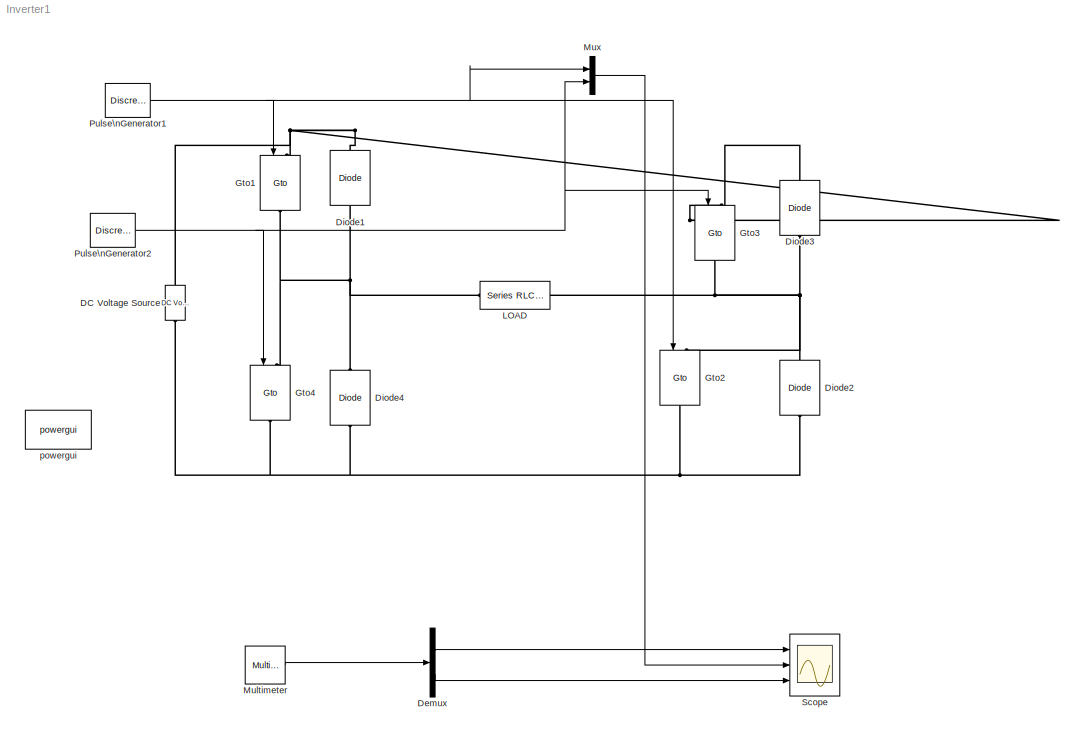
MODEL Inverter1
KIND model
BLOCK [Reference] DC Voltage Source  REF=powerlib/Electrical\nSources/DC Voltage Source
  Amplitude = 5
  FunctionWithSeparateData = off
  GeneratePreprocessorConditionals = off
  Measurements = Voltage
  Ports = [0, 0, 0, 0, 0, 1, 1]
  RTWMemSecDataConstants = Inherit from model
  RTWMemSecDataInternal = Inherit from model
  RTWMemSecDataParameters = Inherit from model
  RTWMemSecFuncExecute = Inherit from model
  RTWMemSecFuncInitTerm = Inherit from model
  SID = 1
  ShowPortLabels = FromPortIcon
  SourceBlock = powerlib/Electrical\nSources/DC Voltage Source
  SourceProductBaseCode = PS
  SourceProductName = Simscape Electrical
  SourceType = DC Voltage Source
  SystemSampleTime = -1
BLOCK [Demux] Demux
  DisplayOption = bar
  Outputs = 2
  Ports = [1, 2]
  SID = 2
BLOCK [Reference] Diode1  REF=powerlib/Power\nElectronics/Diode
  Cs = 250e-9
  FunctionWithSeparateData = off
  GeneratePreprocessorConditionals = off
  IC = 0
  Lon = 0
  Measurements = off
  Ports = [0, 0, 0, 0, 0, 1, 1]
  RTWMemSecDataConstants = Inherit from model
  RTWMemSecDataInternal = Inherit from model
  RTWMemSecDataParameters = Inherit from model
  RTWMemSecFuncExecute = Inherit from model
  RTWMemSecFuncInitTerm = Inherit from model
  Ron = 0.001
  Rs = 500
  SID = 3
  ShowPortLabels = FromPortIcon
  SourceBlock = powerlib/Power\nElectronics/Diode
  SourceProductBaseCode = PS
  SourceProductName = Simscape Electrical
  SourceType = Diode
  SystemSampleTime = -1
  UseSnubber = off
  Vf = 0
BLOCK [Reference] Diode2  REF=powerlib/Power\nElectronics/Diode
  Cs = 250e-9
  FunctionWithSeparateData = off
  GeneratePreprocessorConditionals = off
  IC = 0
  Lon = 0
  Measurements = off
  Ports = [0, 0, 0, 0, 0, 1, 1]
  RTWMemSecDataConstants = Inherit from model
  RTWMemSecDataInternal = Inherit from model
  RTWMemSecDataParameters = Inherit from model
  RTWMemSecFuncExecute = Inherit from model
  RTWMemSecFuncInitTerm = Inherit from model
  Ron = 0.001
  Rs = 500
  SID = 4
  ShowPortLabels = FromPortIcon
  SourceBlock = powerlib/Power\nElectronics/Diode
  SourceProductBaseCode = PS
  SourceProductName = Simscape Electrical
  SourceType = Diode
  SystemSampleTime = -1
  UseSnubber = off
  Vf = 0
BLOCK [Reference] Diode3  REF=powerlib/Power\nElectronics/Diode
  Cs = 250e-9
  FunctionWithSeparateData = off
  GeneratePreprocessorConditionals = off
  IC = 0
  Lon = 0
  Measurements = off
  Ports = [0, 0, 0, 0, 0, 1, 1]
  RTWMemSecDataConstants = Inherit from model
  RTWMemSecDataInternal = Inherit from model
  RTWMemSecDataParameters = Inherit from model
  RTWMemSecFuncExecute = Inherit from model
  RTWMemSecFuncInitTerm = Inherit from model
  Ron = 0.001
  Rs = 500
  SID = 5
  ShowPortLabels = FromPortIcon
  SourceBlock = powerlib/Power\nElectronics/Diode
  SourceProductBaseCode = PS
  SourceProductName = Simscape Electrical
  SourceType = Diode
  SystemSampleTime = -1
  UseSnubber = off
  Vf = 0
BLOCK [Reference] Diode4  REF=powerlib/Power\nElectronics/Diode
  Cs = 250e-9
  FunctionWithSeparateData = off
  GeneratePreprocessorConditionals = off
  IC = 0
  Lon = 0
  Measurements = off
  Ports = [0, 0, 0, 0, 0, 1, 1]
  RTWMemSecDataConstants = Inherit from model
  RTWMemSecDataInternal = Inherit from model
  RTWMemSecDataParameters = Inherit from model
  RTWMemSecFuncExecute = Inherit from model
  RTWMemSecFuncInitTerm = Inherit from model
  Ron = 0.001
  Rs = 500
  SID = 6
  ShowPortLabels = FromPortIcon
  SourceBlock = powerlib/Power\nElectronics/Diode
  SourceProductBaseCode = PS
  SourceProductName = Simscape Electrical
  SourceType = Diode
  SystemSampleTime = -1
  UseSnubber = off
  Vf = 0
BLOCK [Reference] Gto1  REF=powerlib/Power\nElectronics/Gto
  Cs = inf
  FunctionWithSeparateData = off
  GeneratePreprocessorConditionals = off
  IC = 0
  Lon = 1e-6
  Measurements = off
  Ports = [1, 0, 0, 0, 0, 1, 1]
  RTWMemSecDataConstants = Inherit from model
  RTWMemSecDataInternal = Inherit from model
  RTWMemSecDataParameters = Inherit from model
  RTWMemSecFuncExecute = Inherit from model
  RTWMemSecFuncInitTerm = Inherit from model
  Ron = 0.001
  Rs = 1e5
  SID = 7
  ShowPortLabels = FromPortIcon
  SourceBlock = powerlib/Power\nElectronics/Gto
  SourceProductBaseCode = PS
  SourceProductName = Simscape Electrical
  SourceType = Gto
  SystemSampleTime = -1
  Tf = 10e-6
  Tt = 20e-6
  Vf = 0
BLOCK [Reference] Gto2  REF=powerlib/Power\nElectronics/Gto
  Cs = inf
  FunctionWithSeparateData = off
  GeneratePreprocessorConditionals = off
  IC = 0
  Lon = 1e-6
  Measurements = off
  Ports = [1, 0, 0, 0, 0, 1, 1]
  RTWMemSecDataConstants = Inherit from model
  RTWMemSecDataInternal = Inherit from model
  RTWMemSecDataParameters = Inherit from model
  RTWMemSecFuncExecute = Inherit from model
  RTWMemSecFuncInitTerm = Inherit from model
  Ron = 0.001
  Rs = 1e5
  SID = 8
  ShowPortLabels = FromPortIcon
  SourceBlock = powerlib/Power\nElectronics/Gto
  SourceProductBaseCode = PS
  SourceProductName = Simscape Electrical
  SourceType = Gto
  SystemSampleTime = -1
  Tf = 10e-6
  Tt = 20e-6
  Vf = 0
BLOCK [Reference] Gto3  REF=powerlib/Power\nElectronics/Gto
  Cs = inf
  FunctionWithSeparateData = off
  GeneratePreprocessorConditionals = off
  IC = 0
  Lon = 1e-6
  Measurements = off
  Ports = [1, 0, 0, 0, 0, 1, 1]
  RTWMemSecDataConstants = Inherit from model
  RTWMemSecDataInternal = Inherit from model
  RTWMemSecDataParameters = Inherit from model
  RTWMemSecFuncExecute = Inherit from model
  RTWMemSecFuncInitTerm = Inherit from model
  Ron = 0.001
  Rs = 1e5
  SID = 9
  ShowPortLabels = FromPortIcon
  SourceBlock = powerlib/Power\nElectronics/Gto
  SourceProductBaseCode = PS
  SourceProductName = Simscape Electrical
  SourceType = Gto
  SystemSampleTime = -1
  Tf = 10e-6
  Tt = 20e-6
  Vf = 0
BLOCK [Reference] Gto4  REF=powerlib/Power\nElectronics/Gto
  Cs = inf
  FunctionWithSeparateData = off
  GeneratePreprocessorConditionals = off
  IC = 0
  Lon = 1e-6
  Measurements = off
  Ports = [1, 0, 0, 0, 0, 1, 1]
  RTWMemSecDataConstants = Inherit from model
  RTWMemSecDataInternal = Inherit from model
  RTWMemSecDataParameters = Inherit from model
  RTWMemSecFuncExecute = Inherit from model
  RTWMemSecFuncInitTerm = Inherit from model
  Ron = 0.001
  Rs = 1e5
  SID = 10
  ShowPortLabels = FromPortIcon
  SourceBlock = powerlib/Power\nElectronics/Gto
  SourceProductBaseCode = PS
  SourceProductName = Simscape Electrical
  SourceType = Gto
  SystemSampleTime = -1
  Tf = 10e-6
  Tt = 20e-6
  Vf = 0
BLOCK [Reference] LOAD  REF=powerlib/Elements/Series RLC Branch
  BranchType = RLC
  Capacitance = inf
  Inductance = 0
  InitialCurrent = 0
  InitialVoltage = 0
  LConnTagsString = __new0
  LeftPortType = p1
  Measurements = Branch voltage
  PhysicalDomain = powersysdomain
  Ports = [0, 0, 0, 0, 0, 1, 1]
  RConnTagsString = __new0
  Resistance = 1
  RightPortType = p1
  SID = 11
  SetiL0 = off
  Setx0 = off
  SourceBlock = powerlib/Elements/Series RLC Branch
  SourceProductBaseCode = PS
  SourceProductName = Simscape Electrical
  SourceType = Series RLC Branch
  SubClassName = unknown
BLOCK [Reference] Multimeter  REF=powerlib/Measurements/Multimeter
  AxesSetting = [0,0.1,-100,100]
  Display = 0
  FunctionWithSeparateData = off
  Gain = [1 1]
  GeneratePreprocessorConditionals = off
  L = 2
  OutputType = Complex
  PSBOutputType = 1
  PSBequivalent = 0
  PhasorSimulation = off
  Ports = [0, 1, 0, 0, 0, 1]
  RTWMemSecDataConstants = Inherit from model
  RTWMemSecDataInternal = Inherit from model
  RTWMemSecDataParameters = Inherit from model
  RTWMemSecFuncExecute = Inherit from model
  RTWMemSecFuncInitTerm = Inherit from model
  SID = 12
  SavedBlockNames = -11
  ShowPortLabels = FromPortIcon
  SourceBlock = powerlib/Measurements/Multimeter
  SourceProductBaseCode = PS
  SourceProductName = Simscape Electrical
  SourceType = MultimeterPSB
  SystemSampleTime = -1
  sel = [2 1]
  yselected = {'Usrc: DC Voltage Source','Ub: LOAD'};
BLOCK [Mux] Mux
  DisplayOption = bar
  Inputs = 2
  Ports = [2, 1]
  SID = 13
BLOCK [DiscretePulseGenerator] Pulse\nGenerator1
  Period = 1
  Ports = [0, 1]
  PulseType = Time based
  PulseWidth = 50
  SID = 14
BLOCK [DiscretePulseGenerator] Pulse\nGenerator2
  Period = 1
  PhaseDelay = 0.5
  Ports = [0, 1]
  PulseType = Time based
  PulseWidth = 50
  SID = 15
BLOCK [Scope] Scope
  Floating = off
  NumInputPorts = 3
  Ports = [3]
  SID = 16
  ScopeSpecificationString = C++SS(StrPVP('Location','[962, 166, 1394, 791]'),StrPVP('Open','on'),StrPVP('ZoomMode','yonly'),MxPVP('AxesTitles',54,'struct(''axes1'',''Input DC voltage'',''axes2'',''Pulses'',''axes3'',''Output Voltage'')'),StrPVP('YMin','0~-4.99425~-5'),StrPVP('YMax','10~-4.991~5'),StrPVP('DataFormat','StructureWithTime'),StrPVP('BlockParamSampleTime','0'),StrPVP('LimitDataPoints','on'),StrPVP('Decimation','1'...<+40ch>
BLOCK [Reference] powergui  REF=powerlib/powergui
  DisableRonSwitches = off
  DisableSnubberDevices = off
  DisableVfSwitches = off
  DisplayEquations = off
  DisplayStyle = 1
  EnableUseOfTLC = off
  ErrMax = 1e-4
  Frange = [0:2:500]
  FreqAxis = off
  FunctionMessages = off
  FunctionWithSeparateData = off
  GeneratePreprocessorConditionals = off
  HookPort = off
  Interpol = off
  Iterations = 50
  MaxFrequency = 1000
  Pbase = 100e6
  Ports = []
  Priority = 1
  RTWMemSecDataConstants = Inherit from model
  RTWMemSecDataInternal = Inherit from model
  RTWMemSecDataParameters = Inherit from model
  RTWMemSecFuncExecute = Inherit from model
  RTWMemSecFuncInitTerm = Inherit from model
  ResistiveCurrentMeasurement = off
  RestoreLinks = warning
  SID = 17
  SPID = off
  SampleTime = 50e-6
  ShowGrid = off
  ShowPortLabels = FromPortIcon
  SourceBlock = powerlib/powergui
  SourceProductBaseCode = PS
  SourceProductName = Simscape Electrical
  SourceType = PSB option menu block
  StartTime = 0.0
  SwTol = 0
  SystemSampleTime = -1
  UnitsV = kV
  UnitsW = MW
  UserData = DataTag0
  UserDataPersistent = on
  Xlog = on
  Ylog = off
  ZoomFFT = off
  cycles = 1
  display = off
  echomessages = off
  frequency = 60
  frequencyindice = 0
  frequencyindicesteady = 1
  methode = off
  save = off
  variable = ZData
  x0status = blocks
LINE Demux:1 -> Scope:1
LINE Demux:2 -> Scope:3
LINE Multimeter:1 -> Demux:1
LINE Mux:1 -> Scope:2
NET Pulse\nGenerator1:1 -> Gto1:1, Gto2:1, Mux:1
NET Pulse\nGenerator2:1 -> Gto3:1, Gto4:1, Mux:2
PNET net1: DC Voltage Source:LConn1 -- Diode2:LConn1 -- Diode4:LConn1 -- Gto2:RConn1 -- Gto4:RConn1
PNET net2: DC Voltage Source:RConn1 -- Diode1:RConn1 -- Diode3:RConn1 -- Gto1:LConn1 -- Gto3:LConn1
PNET net3: Diode1:LConn1 -- Diode4:RConn1 -- Gto1:RConn1 -- Gto4:LConn1 -- LOAD:LConn1
PNET net4: Diode2:RConn1 -- Diode3:LConn1 -- Gto2:LConn1 -- Gto3:RConn1 -- LOAD:RConn1
note: NET lines group one-source signal fan-out (src -> all destinations, sorted); 1:1 wires keep LINE; PNET lines group multi-terminal physical nets as a canonical sorted terminal list (undirected conserving connections); 2-terminal nets keep the pairwise PLINE form
